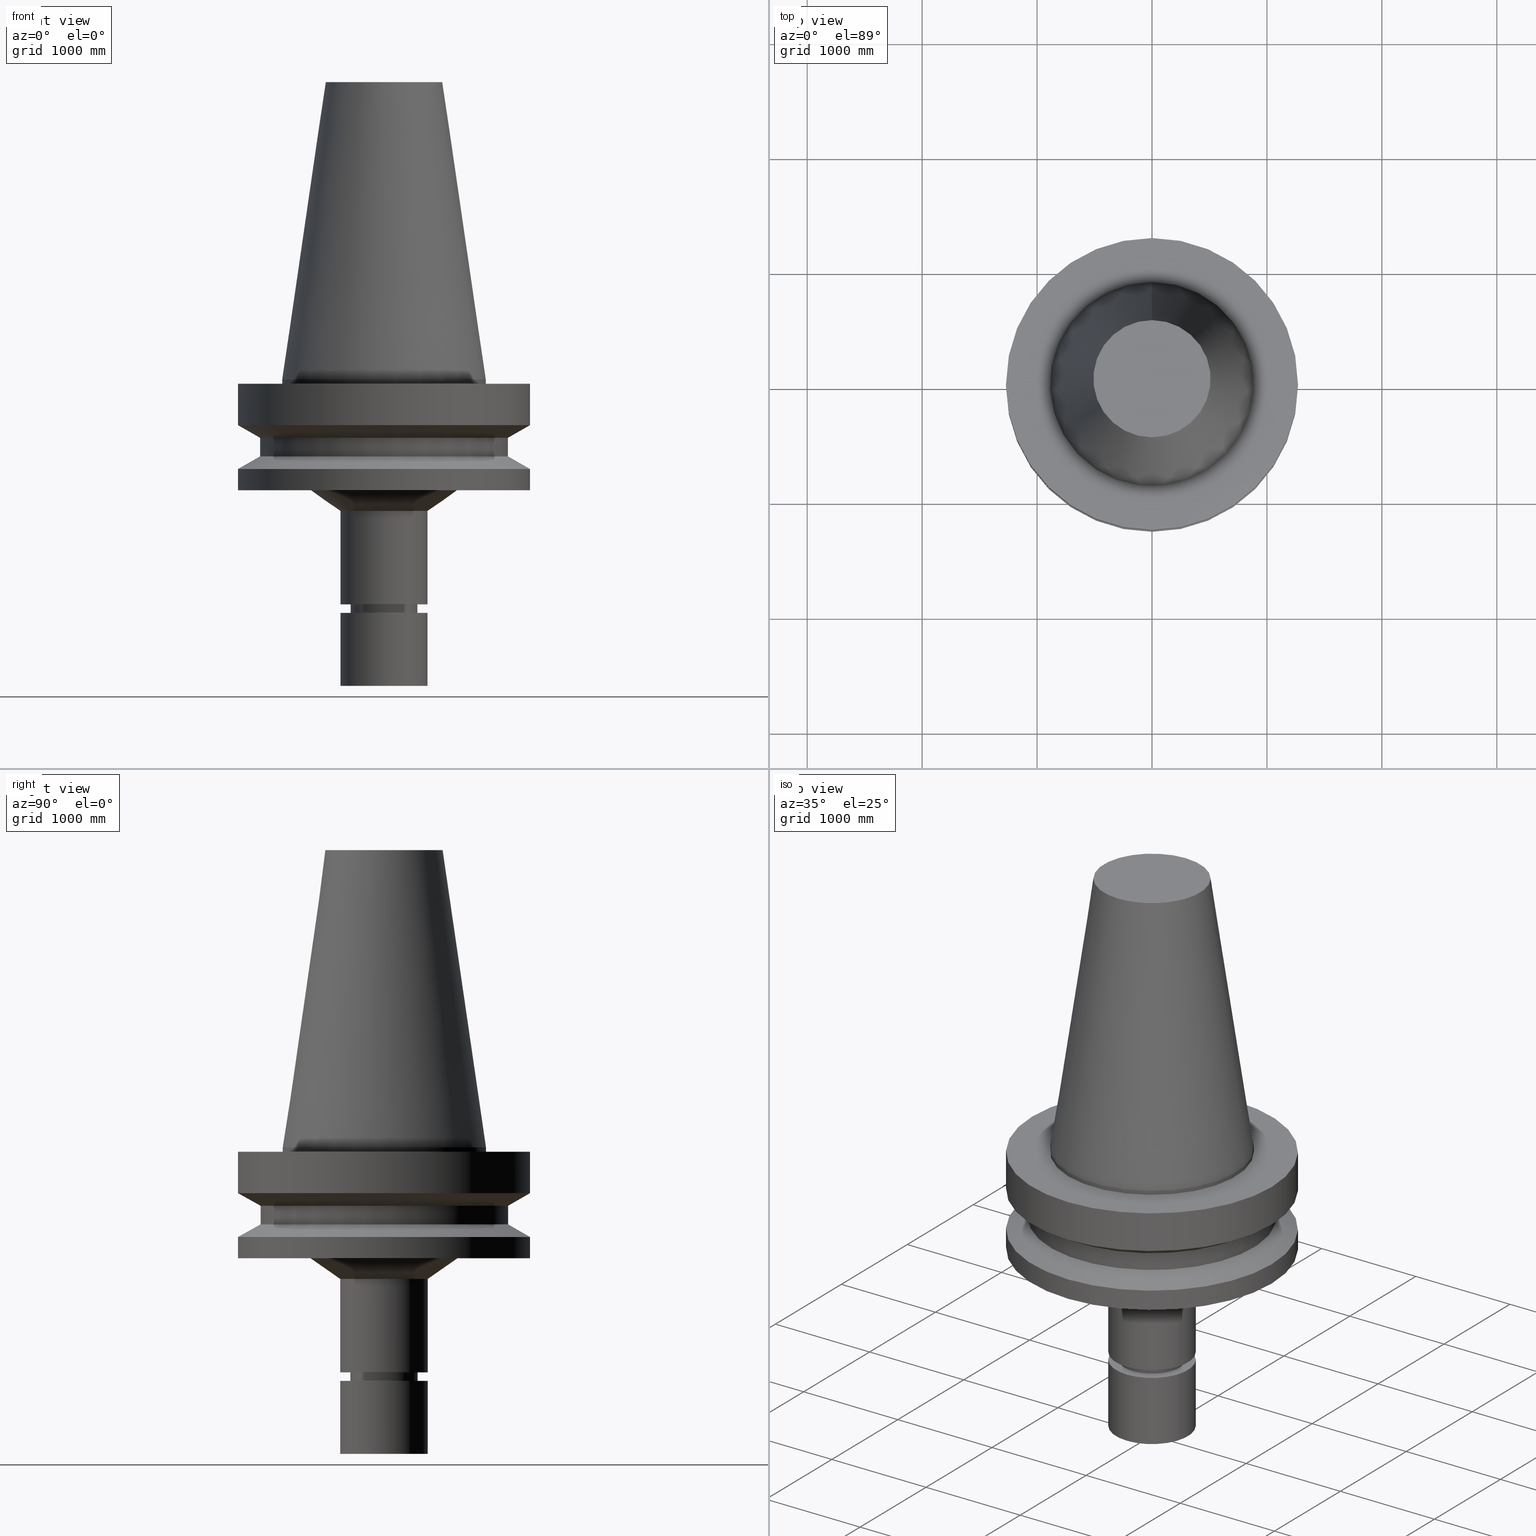
[diagram: canonical four-view strip — front | top / right | iso, engineering-drawing reading convention]
A machine part, canonical four-view strip (front | top / right | iso — engineering-drawing reading convention). The complete STEP part file that produces these views, byte-faithful:
ISO-10303-21;
HEADER;
FILE_DESCRIPTION((''),'1');
FILE_NAME('V:/90_\X2\53D65F9730C730FC30BF\X0\/00_\X2\6DE18DEF30C730FC30BF\X0\/ALL/BBT-BKUS\X2\FF76FF80FF9BFF78FF9E752852A05DE556F3\X0\201801/BBT50-MEGAER/BBT50-MEGAER16-105NL.stp','2018-02-02T07:38:12',(''),(''),'Spatial Interop R21 SP3','Kubotek KeyCreator 2011 V10.0.2 (22737)',' ');
FILE_SCHEMA(('automotive_design'));
ENDSEC;
DATA;
#1=MECHANICAL_DESIGN_GEOMETRIC_PRESENTATION_REPRESENTATION(' ',(#14,#15,#16,#17,#18,#19,#20,#21,#22,#23,#24,#25,#26,#27,#28,#29,#30,#31,#32,#33,#34,#35,#36,#37,#38,#39,#40,#41,#42,#43,#44,#45,#46,#47,#48,#49,#50,#51,#52,#53,#54,#55),#10);
#2=PRODUCT_DEFINITION_CONTEXT('',#56,'design');
#3=APPLICATION_PROTOCOL_DEFINITION('INTERNATIONAL STANDARD','automotive_design',1994,#56);
#4=PRODUCT_CATEGORY_RELATIONSHIP('NONE','NONE',#57,#58);
#5=SHAPE_DEFINITION_REPRESENTATION(#59,#60);
#6=PRODUCT_DEFINITION_CONTEXT('',#61,'design');
#7=APPLICATION_PROTOCOL_DEFINITION('INTERNATIONAL STANDARD','automotive_design',1994,#61);
#8=PRODUCT_CATEGORY_RELATIONSHIP('NONE','NONE',#62,#63);
#9=SHAPE_DEFINITION_REPRESENTATION(#64,#65);
#10= (GEOMETRIC_REPRESENTATION_CONTEXT(3)GLOBAL_UNCERTAINTY_ASSIGNED_CONTEXT((#68))GLOBAL_UNIT_ASSIGNED_CONTEXT((#70,#71,#72))REPRESENTATION_CONTEXT('NONE','WORKSPACE'));
#14=STYLED_ITEM('',(#74,#75),#76);
#15=STYLED_ITEM('',(#77,#78),#79);
#16=STYLED_ITEM('',(#80,#81),#82);
#17=STYLED_ITEM('',(#83,#84),#85);
#18=STYLED_ITEM('',(#86,#87),#88);
#19=STYLED_ITEM('',(#89),#90);
#20=STYLED_ITEM('',(#91),#92);
#21=STYLED_ITEM('',(#93,#94),#95);
#22=STYLED_ITEM('',(#96),#97);
#23=STYLED_ITEM('',(#98),#99);
#24=STYLED_ITEM('',(#100,#101),#102);
#25=STYLED_ITEM('',(#103,#104),#105);
#26=STYLED_ITEM('',(#106),#107);
#27=STYLED_ITEM('',(#108),#109);
#28=STYLED_ITEM('',(#110),#111);
#29=STYLED_ITEM('',(#112,#113),#114);
#30=STYLED_ITEM('',(#115),#116);
#31=STYLED_ITEM('',(#117,#118),#119);
#32=STYLED_ITEM('',(#120,#121),#122);
#33=STYLED_ITEM('',(#123,#124),#125);
#34=STYLED_ITEM('',(#126,#127),#128);
#35=STYLED_ITEM('',(#129,#130),#131);
#36=STYLED_ITEM('',(#132,#133),#134);
#37=STYLED_ITEM('',(#135),#136);
#38=STYLED_ITEM('',(#137,#138),#139);
#39=STYLED_ITEM('',(#140),#141);
#40=STYLED_ITEM('',(#142,#143),#144);
#41=STYLED_ITEM('',(#145),#146);
#42=STYLED_ITEM('',(#147),#148);
#43=STYLED_ITEM('',(#149,#150),#151);
#44=STYLED_ITEM('',(#152),#153);
#45=STYLED_ITEM('',(#154,#155),#156);
#46=STYLED_ITEM('',(#157),#158);
#47=STYLED_ITEM('',(#159),#160);
#48=STYLED_ITEM('',(#161,#162),#163);
#49=STYLED_ITEM('',(#164),#165);
#50=STYLED_ITEM('',(#166),#167);
#51=STYLED_ITEM('',(#168),#169);
#52=STYLED_ITEM('',(#170,#171),#172);
#53=STYLED_ITEM('',(#173,#174),#175);
#54=STYLED_ITEM('',(#176,#177),#178);
#55=STYLED_ITEM('',(#179),#180);
#56=APPLICATION_CONTEXT(' ');
#57=PRODUCT_CATEGORY('part','NONE');
#58=PRODUCT_RELATED_PRODUCT_CATEGORY('detail',' ',(#181));
#59=PRODUCT_DEFINITION_SHAPE('NONE','NONE',#182);
#60=ADVANCED_BREP_SHAPE_REPRESENTATION('Unnamed[1]',(#175,#183),#10);
#61=APPLICATION_CONTEXT(' ');
#62=PRODUCT_CATEGORY('part','NONE');
#63=PRODUCT_RELATED_PRODUCT_CATEGORY('detail',' ',(#184));
#64=PRODUCT_DEFINITION_SHAPE('NONE','NONE',#185);
#65=ADVANCED_BREP_SHAPE_REPRESENTATION('Unnamed[1]',(#102,#186),#10);
#68=UNCERTAINTY_MEASURE_WITH_UNIT(LENGTH_MEASURE(1.0E-006),#70,'','');
#70= (CONVERSION_BASED_UNIT('INCH',#189)LENGTH_UNIT()NAMED_UNIT(#192));
#71= (NAMED_UNIT(#194)PLANE_ANGLE_UNIT()SI_UNIT($,.RADIAN.));
#72= (NAMED_UNIT(#194)SOLID_ANGLE_UNIT()SI_UNIT($,.STERADIAN.));
#74=PRESENTATION_STYLE_ASSIGNMENT((#200));
#75=PRESENTATION_STYLE_ASSIGNMENT((#201));
#76=ADVANCED_FACE('Unnamed[1]',(#202),#203,.T.);
#77=PRESENTATION_STYLE_ASSIGNMENT((#204));
#78=PRESENTATION_STYLE_ASSIGNMENT((#205));
#79=ADVANCED_FACE('Unnamed[1]',(#206,#207),#208,.T.);
#80=PRESENTATION_STYLE_ASSIGNMENT((#209));
#81=PRESENTATION_STYLE_ASSIGNMENT((#210));
#82=ADVANCED_FACE('Unnamed[1]',(#211,#212),#213,.T.);
#83=PRESENTATION_STYLE_ASSIGNMENT((#214));
#84=PRESENTATION_STYLE_ASSIGNMENT((#215));
#85=ADVANCED_FACE('Unnamed[1]',(#216,#217),#218,.T.);
#86=PRESENTATION_STYLE_ASSIGNMENT((#219));
#87=PRESENTATION_STYLE_ASSIGNMENT((#220));
#88=ADVANCED_FACE('Unnamed[1]',(#221,#222),#223,.T.);
#89=PRESENTATION_STYLE_ASSIGNMENT((#224));
#90=EDGE_CURVE('Unnamed[1]',#225,#225,#226,.T.);
#91=PRESENTATION_STYLE_ASSIGNMENT((#227));
#92=EDGE_CURVE('Unnamed[1]',#228,#228,#229,.T.);
#93=PRESENTATION_STYLE_ASSIGNMENT((#230));
#94=PRESENTATION_STYLE_ASSIGNMENT((#231));
#95=ADVANCED_FACE('Unnamed[1]',(#232,#233),#234,.T.);
#96=PRESENTATION_STYLE_ASSIGNMENT((#235));
#97=EDGE_CURVE('Unnamed[1]',#236,#236,#237,.T.);
#98=PRESENTATION_STYLE_ASSIGNMENT((#238));
#99=EDGE_CURVE('Unnamed[1]',#239,#239,#240,.T.);
#100=PRESENTATION_STYLE_ASSIGNMENT((#241));
#101=PRESENTATION_STYLE_ASSIGNMENT((#242));
#102=MANIFOLD_SOLID_BREP('Unnamed[1]',#243);
#103=PRESENTATION_STYLE_ASSIGNMENT((#244));
#104=PRESENTATION_STYLE_ASSIGNMENT((#245));
#105=ADVANCED_FACE('Unnamed[1]',(#246,#247),#248,.T.);
#106=PRESENTATION_STYLE_ASSIGNMENT((#249));
#107=EDGE_CURVE('Unnamed[1]',#250,#250,#251,.T.);
#108=PRESENTATION_STYLE_ASSIGNMENT((#252));
#109=EDGE_CURVE('Unnamed[1]',#253,#253,#254,.T.);
#110=PRESENTATION_STYLE_ASSIGNMENT((#255));
#111=EDGE_CURVE('Unnamed[1]',#256,#256,#257,.T.);
#112=PRESENTATION_STYLE_ASSIGNMENT((#258));
#113=PRESENTATION_STYLE_ASSIGNMENT((#259));
#114=ADVANCED_FACE('Unnamed[1]',(#260,#261),#262,.T.);
#115=PRESENTATION_STYLE_ASSIGNMENT((#263));
#116=EDGE_CURVE('Unnamed[1]',#264,#264,#265,.T.);
#117=PRESENTATION_STYLE_ASSIGNMENT((#266));
#118=PRESENTATION_STYLE_ASSIGNMENT((#267));
#119=ADVANCED_FACE('Unnamed[1]',(#268,#269),#270,.T.);
#120=PRESENTATION_STYLE_ASSIGNMENT((#271));
#121=PRESENTATION_STYLE_ASSIGNMENT((#272));
#122=ADVANCED_FACE('Unnamed[1]',(#273),#274,.T.);
#123=PRESENTATION_STYLE_ASSIGNMENT((#275));
#124=PRESENTATION_STYLE_ASSIGNMENT((#276));
#125=ADVANCED_FACE('Unnamed[1]',(#277,#278),#279,.T.);
#126=PRESENTATION_STYLE_ASSIGNMENT((#280));
#127=PRESENTATION_STYLE_ASSIGNMENT((#281));
#128=ADVANCED_FACE('Unnamed[1]',(#282,#283),#284,.T.);
#129=PRESENTATION_STYLE_ASSIGNMENT((#285));
#130=PRESENTATION_STYLE_ASSIGNMENT((#286));
#131=ADVANCED_FACE('Unnamed[1]',(#287,#288),#289,.T.);
#132=PRESENTATION_STYLE_ASSIGNMENT((#290));
#133=PRESENTATION_STYLE_ASSIGNMENT((#291));
#134=ADVANCED_FACE('Unnamed[1]',(#292,#293),#294,.T.);
#135=PRESENTATION_STYLE_ASSIGNMENT((#295));
#136=EDGE_CURVE('Unnamed[1]',#296,#296,#297,.T.);
#137=PRESENTATION_STYLE_ASSIGNMENT((#298));
#138=PRESENTATION_STYLE_ASSIGNMENT((#299));
#139=ADVANCED_FACE('Unnamed[1]',(#300,#301),#302,.T.);
#140=PRESENTATION_STYLE_ASSIGNMENT((#303));
#141=EDGE_CURVE('Unnamed[1]',#304,#304,#305,.T.);
#142=PRESENTATION_STYLE_ASSIGNMENT((#306));
#143=PRESENTATION_STYLE_ASSIGNMENT((#307));
#144=ADVANCED_FACE('Unnamed[1]',(#308),#309,.T.);
#145=PRESENTATION_STYLE_ASSIGNMENT((#310));
#146=EDGE_CURVE('Unnamed[1]',#311,#311,#312,.T.);
#147=PRESENTATION_STYLE_ASSIGNMENT((#313));
#148=EDGE_CURVE('Unnamed[1]',#314,#314,#315,.T.);
#149=PRESENTATION_STYLE_ASSIGNMENT((#316));
#150=PRESENTATION_STYLE_ASSIGNMENT((#317));
#151=ADVANCED_FACE('Unnamed[1]',(#318,#319),#320,.T.);
#152=PRESENTATION_STYLE_ASSIGNMENT((#321));
#153=EDGE_CURVE('Unnamed[1]',#322,#322,#323,.T.);
#154=PRESENTATION_STYLE_ASSIGNMENT((#324));
#155=PRESENTATION_STYLE_ASSIGNMENT((#325));
#156=ADVANCED_FACE('Unnamed[1]',(#326,#327),#328,.T.);
#157=PRESENTATION_STYLE_ASSIGNMENT((#329));
#158=EDGE_CURVE('Unnamed[1]',#330,#330,#331,.T.);
#159=PRESENTATION_STYLE_ASSIGNMENT((#332));
#160=EDGE_CURVE('Unnamed[1]',#333,#333,#334,.T.);
#161=PRESENTATION_STYLE_ASSIGNMENT((#335));
#162=PRESENTATION_STYLE_ASSIGNMENT((#336));
#163=ADVANCED_FACE('Unnamed[1]',(#337,#338),#339,.T.);
#164=PRESENTATION_STYLE_ASSIGNMENT((#340));
#165=EDGE_CURVE('Unnamed[1]',#341,#341,#342,.T.);
#166=PRESENTATION_STYLE_ASSIGNMENT((#343));
#167=EDGE_CURVE('Unnamed[1]',#344,#344,#345,.T.);
#168=PRESENTATION_STYLE_ASSIGNMENT((#346));
#169=EDGE_CURVE('Unnamed[1]',#347,#347,#348,.T.);
#170=PRESENTATION_STYLE_ASSIGNMENT((#349));
#171=PRESENTATION_STYLE_ASSIGNMENT((#350));
#172=ADVANCED_FACE('Unnamed[1]',(#351),#352,.T.);
#173=PRESENTATION_STYLE_ASSIGNMENT((#353));
#174=PRESENTATION_STYLE_ASSIGNMENT((#354));
#175=MANIFOLD_SOLID_BREP('Unnamed[1]',#355);
#176=PRESENTATION_STYLE_ASSIGNMENT((#356));
#177=PRESENTATION_STYLE_ASSIGNMENT((#357));
#178=ADVANCED_FACE('Unnamed[1]',(#358,#359),#360,.T.);
#179=PRESENTATION_STYLE_ASSIGNMENT((#361));
#180=EDGE_CURVE('Unnamed[1]',#362,#362,#363,.T.);
#181=PRODUCT('Unnamed[1]','Unnamed[1]','PART-Unnamed[1]-DESC',(#364));
#182=PRODUCT_DEFINITION('NONE','NONE',#365,#2);
#183=AXIS2_PLACEMENT_3D('',#366,#367,#368);
#184=PRODUCT('Unnamed[1]','Unnamed[1]','PART-Unnamed[1]-DESC',(#369));
#185=PRODUCT_DEFINITION('NONE','NONE',#370,#6);
#186=AXIS2_PLACEMENT_3D('',#371,#372,#373);
#189=LENGTH_MEASURE_WITH_UNIT(LENGTH_MEASURE(25.4),#374);
#192=DIMENSIONAL_EXPONENTS(1.0,0.0,0.0,0.0,0.0,0.0,0.0);
#194=DIMENSIONAL_EXPONENTS(0.0,0.0,0.0,0.0,0.0,0.0,0.0);
#200=SURFACE_STYLE_USAGE(.BOTH.,#375);
#201=CURVE_STYLE('',#376,POSITIVE_LENGTH_MEASURE(1000.0),#377);
#202=FACE_OUTER_BOUND('',#378,.T.);
#203=PLANE('',#379);
#204=SURFACE_STYLE_USAGE(.BOTH.,#380);
#205=CURVE_STYLE('',#381,POSITIVE_LENGTH_MEASURE(1000.0),#382);
#206=FACE_OUTER_BOUND('',#383,.T.);
#207=FACE_BOUND('',#384,.T.);
#208=PLANE('',#385);
#209=SURFACE_STYLE_USAGE(.BOTH.,#386);
#210=CURVE_STYLE('',#387,POSITIVE_LENGTH_MEASURE(1000.0),#388);
#211=FACE_BOUND('',#389,.T.);
#212=FACE_BOUND('',#390,.T.);
#213=CONICAL_SURFACE('',#391,46.25,1.04719755108882);
#214=SURFACE_STYLE_USAGE(.BOTH.,#392);
#215=CURVE_STYLE('',#393,POSITIVE_LENGTH_MEASURE(1000.0),#394);
#216=FACE_BOUND('',#395,.T.);
#217=FACE_BOUND('',#396,.T.);
#218=CONICAL_SURFACE('',#397,27.5020833325942,0.144812498253157);
#219=SURFACE_STYLE_USAGE(.BOTH.,#398);
#220=CURVE_STYLE('',#399,POSITIVE_LENGTH_MEASURE(1000.0),#400);
#221=FACE_BOUND('',#401,.T.);
#222=FACE_BOUND('',#402,.T.);
#223=CYLINDRICAL_SURFACE('',#403,11.0000000000001);
#224=CURVE_STYLE('',#404,POSITIVE_LENGTH_MEASURE(1000.0),#405);
#225=VERTEX_POINT('',#406);
#226=CIRCLE('',#407,42.5);
#227=CURVE_STYLE('',#408,POSITIVE_LENGTH_MEASURE(1000.0),#409);
#228=VERTEX_POINT('',#410);
#229=CIRCLE('',#411,42.5);
#230=SURFACE_STYLE_USAGE(.BOTH.,#412);
#231=CURVE_STYLE('',#413,POSITIVE_LENGTH_MEASURE(1000.0),#414);
#232=FACE_BOUND('',#415,.T.);
#233=FACE_BOUND('',#416,.T.);
#234=CONICAL_SURFACE('',#417,20.0717863357248,0.962446965226311);
#235=CURVE_STYLE('',#418,POSITIVE_LENGTH_MEASURE(1000.0),#419);
#236=VERTEX_POINT('',#420);
#237=CIRCLE('',#421,25.1435726714495);
#238=CURVE_STYLE('',#422,POSITIVE_LENGTH_MEASURE(1000.0),#423);
#239=VERTEX_POINT('',#424);
#240=CIRCLE('',#425,20.0791666651884);
#241=SURFACE_STYLE_USAGE(.BOTH.,#426);
#242=CURVE_STYLE('',#427,POSITIVE_LENGTH_MEASURE(1000.0),#428);
#243=CLOSED_SHELL('',(#172,#144,#119));
#244=SURFACE_STYLE_USAGE(.BOTH.,#429);
#245=CURVE_STYLE('',#430,POSITIVE_LENGTH_MEASURE(1000.0),#431);
#246=FACE_BOUND('',#432,.T.);
#247=FACE_BOUND('',#433,.T.);
#248=CYLINDRICAL_SURFACE('',#434,34.925);
#249=CURVE_STYLE('',#435,POSITIVE_LENGTH_MEASURE(1000.0),#436);
#250=VERTEX_POINT('',#437);
#251=CIRCLE('',#438,50.0);
#252=CURVE_STYLE('',#439,POSITIVE_LENGTH_MEASURE(1000.0),#440);
#253=VERTEX_POINT('',#441);
#254=CIRCLE('',#442,11.5000000000021);
#255=CURVE_STYLE('',#443,POSITIVE_LENGTH_MEASURE(1000.0),#444);
#256=VERTEX_POINT('',#445);
#257=CIRCLE('',#446,34.925);
#258=SURFACE_STYLE_USAGE(.BOTH.,#447);
#259=CURVE_STYLE('',#448,POSITIVE_LENGTH_MEASURE(1000.0),#449);
#260=FACE_BOUND('',#450,.T.);
#261=FACE_BOUND('',#451,.T.);
#262=CONICAL_SURFACE('',#452,46.25,1.04719755108882);
#263=CURVE_STYLE('',#453,POSITIVE_LENGTH_MEASURE(1000.0),#454);
#264=VERTEX_POINT('',#455);
#265=CIRCLE('',#456,10.9999999999999);
#266=SURFACE_STYLE_USAGE(.BOTH.,#457);
#267=CURVE_STYLE('',#458,POSITIVE_LENGTH_MEASURE(1000.0),#459);
#268=FACE_BOUND('',#460,.T.);
#269=FACE_BOUND('',#461,.T.);
#270=CYLINDRICAL_SURFACE('',#462,15.0);
#271=SURFACE_STYLE_USAGE(.BOTH.,#463);
#272=CURVE_STYLE('',#464,POSITIVE_LENGTH_MEASURE(1000.0),#465);
#273=FACE_OUTER_BOUND('',#466,.T.);
#274=PLANE('',#467);
#275=SURFACE_STYLE_USAGE(.BOTH.,#468);
#276=CURVE_STYLE('',#469,POSITIVE_LENGTH_MEASURE(1000.0),#470);
#277=FACE_BOUND('',#471,.T.);
#278=FACE_OUTER_BOUND('',#472,.T.);
#279=PLANE('',#473);
#280=SURFACE_STYLE_USAGE(.BOTH.,#474);
#281=CURVE_STYLE('',#475,POSITIVE_LENGTH_MEASURE(1000.0),#476);
#282=FACE_BOUND('',#477,.T.);
#283=FACE_BOUND('',#478,.T.);
#284=CONICAL_SURFACE('',#479,10.4499999999999,0.523598775598227);
#285=SURFACE_STYLE_USAGE(.BOTH.,#480);
#286=CURVE_STYLE('',#481,POSITIVE_LENGTH_MEASURE(1000.0),#482);
#287=FACE_OUTER_BOUND('',#483,.T.);
#288=FACE_BOUND('',#484,.T.);
#289=PLANE('',#485);
#290=SURFACE_STYLE_USAGE(.BOTH.,#486);
#291=CURVE_STYLE('',#487,POSITIVE_LENGTH_MEASURE(1000.0),#488);
#292=FACE_BOUND('',#489,.T.);
#293=FACE_BOUND('',#490,.T.);
#294=CYLINDRICAL_SURFACE('',#491,15.0000000000002);
#295=CURVE_STYLE('',#492,POSITIVE_LENGTH_MEASURE(1000.0),#493);
#296=VERTEX_POINT('',#494);
#297=CIRCLE('',#495,15.0);
#298=SURFACE_STYLE_USAGE(.BOTH.,#496);
#299=CURVE_STYLE('',#497,POSITIVE_LENGTH_MEASURE(1000.0),#498);
#300=FACE_BOUND('',#499,.T.);
#301=FACE_BOUND('',#500,.T.);
#302=CYLINDRICAL_SURFACE('',#501,42.5);
#303=CURVE_STYLE('',#502,POSITIVE_LENGTH_MEASURE(1000.0),#503);
#304=VERTEX_POINT('',#504);
#305=CIRCLE('',#505,9.89999999999962);
#306=SURFACE_STYLE_USAGE(.BOTH.,#506);
#307=CURVE_STYLE('',#507,POSITIVE_LENGTH_MEASURE(1000.0),#508);
#308=FACE_OUTER_BOUND('',#509,.T.);
#309=PLANE('',#510);
#310=CURVE_STYLE('',#511,POSITIVE_LENGTH_MEASURE(1000.0),#512);
#311=VERTEX_POINT('',#513);
#312=CIRCLE('',#514,50.0);
#313=CURVE_STYLE('',#515,POSITIVE_LENGTH_MEASURE(1000.0),#516);
#314=VERTEX_POINT('',#517);
#315=CIRCLE('',#518,15.0000000000001);
#316=SURFACE_STYLE_USAGE(.BOTH.,#519);
#317=CURVE_STYLE('',#520,POSITIVE_LENGTH_MEASURE(1000.0),#521);
#318=FACE_BOUND('',#522,.T.);
#319=FACE_BOUND('',#523,.T.);
#320=CYLINDRICAL_SURFACE('',#524,50.0);
#321=CURVE_STYLE('',#525,POSITIVE_LENGTH_MEASURE(1000.0),#526);
#322=VERTEX_POINT('',#527);
#323=CIRCLE('',#528,34.925);
#324=SURFACE_STYLE_USAGE(.BOTH.,#529);
#325=CURVE_STYLE('',#530,POSITIVE_LENGTH_MEASURE(1000.0),#531);
#326=FACE_BOUND('',#532,.T.);
#327=FACE_BOUND('',#533,.T.);
#328=CYLINDRICAL_SURFACE('',#534,11.4999999999964);
#329=CURVE_STYLE('',#535,POSITIVE_LENGTH_MEASURE(1000.0),#536);
#330=VERTEX_POINT('',#537);
#331=CIRCLE('',#538,11.0000000000002);
#332=CURVE_STYLE('',#539,POSITIVE_LENGTH_MEASURE(1000.0),#540);
#333=VERTEX_POINT('',#541);
#334=CIRCLE('',#542,11.4999999999907);
#335=SURFACE_STYLE_USAGE(.BOTH.,#543);
#336=CURVE_STYLE('',#544,POSITIVE_LENGTH_MEASURE(1000.0),#545);
#337=FACE_BOUND('',#546,.T.);
#338=FACE_BOUND('',#547,.T.);
#339=CYLINDRICAL_SURFACE('',#548,50.0);
#340=CURVE_STYLE('',#549,POSITIVE_LENGTH_MEASURE(1000.0),#550);
#341=VERTEX_POINT('',#551);
#342=CIRCLE('',#552,50.0);
#343=CURVE_STYLE('',#553,POSITIVE_LENGTH_MEASURE(1000.0),#554);
#344=VERTEX_POINT('',#555);
#345=CIRCLE('',#556,50.0);
#346=CURVE_STYLE('',#557,POSITIVE_LENGTH_MEASURE(1000.0),#558);
#347=VERTEX_POINT('',#559);
#348=CIRCLE('',#560,15.0000000000002);
#349=SURFACE_STYLE_USAGE(.BOTH.,#561);
#350=CURVE_STYLE('',#562,POSITIVE_LENGTH_MEASURE(1000.0),#563);
#351=FACE_OUTER_BOUND('',#564,.T.);
#352=PLANE('',#565);
#353=SURFACE_STYLE_USAGE(.BOTH.,#566);
#354=CURVE_STYLE('',#567,POSITIVE_LENGTH_MEASURE(1000.0),#568);
#355=CLOSED_SHELL('',(#76,#128,#88,#178,#156,#131,#134,#95,#79,#163,#82,#139,#114,#151,#125,#105,#85,#122));
#356=SURFACE_STYLE_USAGE(.BOTH.,#569);
#357=CURVE_STYLE('',#570,POSITIVE_LENGTH_MEASURE(1000.0),#571);
#358=FACE_BOUND('',#572,.T.);
#359=FACE_BOUND('',#573,.T.);
#360=CONICAL_SURFACE('',#574,11.250000000001,1.04719755118904);
#361=CURVE_STYLE('',#575,POSITIVE_LENGTH_MEASURE(1000.0),#576);
#362=VERTEX_POINT('',#577);
#363=CIRCLE('',#578,15.0000000000001);
#364=PRODUCT_CONTEXT('',#56,'mechanical');
#365=PRODUCT_DEFINITION_FORMATION_WITH_SPECIFIED_SOURCE(' ','NONE',#181,.NOT_KNOWN.);
#366=CARTESIAN_POINT('',(0.0,0.0,0.0));
#367=DIRECTION('',(0.0,0.0,1.0));
#368=DIRECTION('',(1.0,0.0,0.0));
#369=PRODUCT_CONTEXT('',#61,'mechanical');
#370=PRODUCT_DEFINITION_FORMATION_WITH_SPECIFIED_SOURCE(' ','NONE',#184,.NOT_KNOWN.);
#371=CARTESIAN_POINT('',(0.0,0.0,0.0));
#372=DIRECTION('',(0.0,0.0,1.0));
#373=DIRECTION('',(1.0,0.0,0.0));
#374= (NAMED_UNIT(#192)LENGTH_UNIT()SI_UNIT(.MILLI.,.METRE.));
#375=SURFACE_SIDE_STYLE('',(#580));
#376=DRAUGHTING_PRE_DEFINED_CURVE_FONT('continuous');
#377=COLOUR_RGB('',0.0,1.0,0.0);
#378=EDGE_LOOP('',(#581));
#379=AXIS2_PLACEMENT_3D('',#582,#583,#584);
#380=SURFACE_SIDE_STYLE('',(#585));
#381=DRAUGHTING_PRE_DEFINED_CURVE_FONT('continuous');
#382=COLOUR_RGB('',0.0,1.0,0.0);
#383=EDGE_LOOP('',(#586));
#384=EDGE_LOOP('',(#587));
#385=AXIS2_PLACEMENT_3D('',#588,#589,#590);
#386=SURFACE_SIDE_STYLE('',(#591));
#387=DRAUGHTING_PRE_DEFINED_CURVE_FONT('continuous');
#388=COLOUR_RGB('',0.0,1.0,0.0);
#389=EDGE_LOOP('',(#592));
#390=EDGE_LOOP('',(#593));
#391=AXIS2_PLACEMENT_3D('',#594,#595,#596);
#392=SURFACE_SIDE_STYLE('',(#597));
#393=DRAUGHTING_PRE_DEFINED_CURVE_FONT('continuous');
#394=COLOUR_RGB('',0.0,1.0,0.0);
#395=EDGE_LOOP('',(#598));
#396=EDGE_LOOP('',(#599));
#397=AXIS2_PLACEMENT_3D('',#600,#601,#602);
#398=SURFACE_SIDE_STYLE('',(#603));
#399=DRAUGHTING_PRE_DEFINED_CURVE_FONT('continuous');
#400=COLOUR_RGB('',0.0,1.0,0.0);
#401=EDGE_LOOP('',(#604));
#402=EDGE_LOOP('',(#605));
#403=AXIS2_PLACEMENT_3D('',#606,#607,#608);
#404=DRAUGHTING_PRE_DEFINED_CURVE_FONT('continuous');
#405=COLOUR_RGB('',0.0,1.0,0.0);
#406=CARTESIAN_POINT('',(1.61468902694397E-015,42.5,-26.3698729800001));
#407=AXIS2_PLACEMENT_3D('',#609,#610,#611);
#408=DRAUGHTING_PRE_DEFINED_CURVE_FONT('continuous');
#409=COLOUR_RGB('',0.0,1.0,0.0);
#410=CARTESIAN_POINT('',(1.2264915470779E-015,42.5,-20.03012702));
#411=AXIS2_PLACEMENT_3D('',#612,#613,#614);
#412=SURFACE_SIDE_STYLE('',(#615));
#413=DRAUGHTING_PRE_DEFINED_CURVE_FONT('continuous');
#414=COLOUR_RGB('',0.0,1.0,0.0);
#415=EDGE_LOOP('',(#616));
#416=EDGE_LOOP('',(#617));
#417=AXIS2_PLACEMENT_3D('',#618,#619,#620);
#418=DRAUGHTING_PRE_DEFINED_CURVE_FONT('continuous');
#419=COLOUR_RGB('',0.0,1.0,0.0);
#420=CARTESIAN_POINT('',(2.32682891837996E-015,25.1435726714495,-37.9999999999999));
#421=AXIS2_PLACEMENT_3D('',#621,#622,#623);
#422=DRAUGHTING_PRE_DEFINED_CURVE_FONT('continuous');
#423=COLOUR_RGB('',0.0,1.0,0.0);
#424=CARTESIAN_POINT('',(-6.23345220766003E-015,20.0791666651884,101.8));
#425=AXIS2_PLACEMENT_3D('',#624,#625,#626);
#426=SURFACE_SIDE_STYLE('',(#627));
#427=DRAUGHTING_PRE_DEFINED_CURVE_FONT('continuous');
#428=COLOUR_RGB('',0.0,1.0,0.0);
#429=SURFACE_SIDE_STYLE('',(#628));
#430=DRAUGHTING_PRE_DEFINED_CURVE_FONT('continuous');
#431=COLOUR_RGB('',0.0,1.0,0.0);
#432=EDGE_LOOP('',(#629));
#433=EDGE_LOOP('',(#630));
#434=AXIS2_PLACEMENT_3D('',#631,#632,#633);
#435=DRAUGHTING_PRE_DEFINED_CURVE_FONT('continuous');
#436=COLOUR_RGB('',0.0,1.0,0.0);
#437=CARTESIAN_POINT('',(9.61347737330674E-016,50.0,-15.7));
#438=AXIS2_PLACEMENT_3D('',#634,#635,#636);
#439=DRAUGHTING_PRE_DEFINED_CURVE_FONT('continuous');
#440=COLOUR_RGB('',0.0,1.0,0.0);
#441=CARTESIAN_POINT('',(5.07685443047376E-015,11.5000000000021,-82.9113248653973));
#442=AXIS2_PLACEMENT_3D('',#637,#638,#639);
#443=DRAUGHTING_PRE_DEFINED_CURVE_FONT('continuous');
#444=COLOUR_RGB('',0.0,1.0,0.0);
#445=CARTESIAN_POINT('',(9.18485099360511E-017,34.925,-1.5));
#446=AXIS2_PLACEMENT_3D('',#640,#641,#642);
#447=SURFACE_SIDE_STYLE('',(#643));
#448=DRAUGHTING_PRE_DEFINED_CURVE_FONT('continuous');
#449=COLOUR_RGB('',0.0,1.0,0.0);
#450=EDGE_LOOP('',(#644));
#451=EDGE_LOOP('',(#645));
#452=AXIS2_PLACEMENT_3D('',#646,#647,#648);
#453=DRAUGHTING_PRE_DEFINED_CURVE_FONT('continuous');
#454=COLOUR_RGB('',0.0,1.0,0.0);
#455=CARTESIAN_POINT('',(5.09453068445289E-015,10.9999999999999,-83.1999999999985));
#456=AXIS2_PLACEMENT_3D('',#649,#650,#651);
#457=SURFACE_SIDE_STYLE('',(#652));
#458=DRAUGHTING_PRE_DEFINED_CURVE_FONT('continuous');
#459=COLOUR_RGB('',0.0,1.0,0.0);
#460=EDGE_LOOP('',(#653));
#461=EDGE_LOOP('',(#654));
#462=AXIS2_PLACEMENT_3D('',#655,#656,#657);
#463=SURFACE_SIDE_STYLE('',(#658));
#464=DRAUGHTING_PRE_DEFINED_CURVE_FONT('continuous');
#465=COLOUR_RGB('',0.0,1.0,0.0);
#466=EDGE_LOOP('',(#659));
#467=AXIS2_PLACEMENT_3D('',#660,#661,#662);
#468=SURFACE_SIDE_STYLE('',(#663));
#469=DRAUGHTING_PRE_DEFINED_CURVE_FONT('continuous');
#470=COLOUR_RGB('',0.0,1.0,0.0);
#471=EDGE_LOOP('',(#664));
#472=EDGE_LOOP('',(#665));
#473=AXIS2_PLACEMENT_3D('',#666,#667,#668);
#474=SURFACE_SIDE_STYLE('',(#669));
#475=DRAUGHTING_PRE_DEFINED_CURVE_FONT('continuous');
#476=COLOUR_RGB('',0.0,1.0,0.0);
#477=EDGE_LOOP('',(#670));
#478=EDGE_LOOP('',(#671));
#479=AXIS2_PLACEMENT_3D('',#672,#673,#674);
#480=SURFACE_SIDE_STYLE('',(#675));
#481=DRAUGHTING_PRE_DEFINED_CURVE_FONT('continuous');
#482=COLOUR_RGB('',0.0,1.0,0.0);
#483=EDGE_LOOP('',(#676));
#484=EDGE_LOOP('',(#677));
#485=AXIS2_PLACEMENT_3D('',#678,#679,#680);
#486=SURFACE_SIDE_STYLE('',(#681));
#487=DRAUGHTING_PRE_DEFINED_CURVE_FONT('continuous');
#488=COLOUR_RGB('',0.0,1.0,0.0);
#489=EDGE_LOOP('',(#682));
#490=EDGE_LOOP('',(#683));
#491=AXIS2_PLACEMENT_3D('',#684,#685,#686);
#492=DRAUGHTING_PRE_DEFINED_CURVE_FONT('continuous');
#493=COLOUR_RGB('',0.0,1.0,0.0);
#494=CARTESIAN_POINT('',(6.4293956955236E-015,15.0,-105.0));
#495=AXIS2_PLACEMENT_3D('',#687,#688,#689);
#496=SURFACE_SIDE_STYLE('',(#690));
#497=DRAUGHTING_PRE_DEFINED_CURVE_FONT('continuous');
#498=COLOUR_RGB('',0.0,1.0,0.0);
#499=EDGE_LOOP('',(#691));
#500=EDGE_LOOP('',(#692));
#501=AXIS2_PLACEMENT_3D('',#693,#694,#695);
#502=DRAUGHTING_PRE_DEFINED_CURVE_FONT('continuous');
#503=COLOUR_RGB('',0.0,1.0,0.0);
#504=CARTESIAN_POINT('',(5.89055110389872E-015,9.89999999999963,-96.1999999999991));
#505=AXIS2_PLACEMENT_3D('',#696,#697,#698);
#506=SURFACE_SIDE_STYLE('',(#699));
#507=DRAUGHTING_PRE_DEFINED_CURVE_FONT('continuous');
#508=COLOUR_RGB('',0.0,1.0,0.0);
#509=EDGE_LOOP('',(#700));
#510=AXIS2_PLACEMENT_3D('',#701,#702,#703);
#511=DRAUGHTING_PRE_DEFINED_CURVE_FONT('continuous');
#512=COLOUR_RGB('',0.0,1.0,0.0);
#513=CARTESIAN_POINT('',(9.18485099360509E-017,50.0,-1.49999999999999));
#514=AXIS2_PLACEMENT_3D('',#704,#705,#706);
#515=DRAUGHTING_PRE_DEFINED_CURVE_FONT('continuous');
#516=COLOUR_RGB('',0.0,1.0,0.0);
#517=CARTESIAN_POINT('',(2.75941339741635E-015,15.0000000000001,-45.0646406676204));
#518=AXIS2_PLACEMENT_3D('',#707,#708,#709);
#519=SURFACE_SIDE_STYLE('',(#710));
#520=DRAUGHTING_PRE_DEFINED_CURVE_FONT('continuous');
#521=COLOUR_RGB('',0.0,1.0,0.0);
#522=EDGE_LOOP('',(#711));
#523=EDGE_LOOP('',(#712));
#524=AXIS2_PLACEMENT_3D('',#713,#714,#715);
#525=DRAUGHTING_PRE_DEFINED_CURVE_FONT('continuous');
#526=COLOUR_RGB('',0.0,1.0,0.0);
#527=CARTESIAN_POINT('',(-4.30483861169435E-031,34.925,4.27707894602213E-015));
#528=AXIS2_PLACEMENT_3D('',#716,#717,#718);
#529=SURFACE_SIDE_STYLE('',(#719));
#530=DRAUGHTING_PRE_DEFINED_CURVE_FONT('continuous');
#531=COLOUR_RGB('',0.0,1.0,0.0);
#532=EDGE_LOOP('',(#720));
#533=EDGE_LOOP('',(#721));
#534=AXIS2_PLACEMENT_3D('',#722,#723,#724);
#535=DRAUGHTING_PRE_DEFINED_CURVE_FONT('continuous');
#536=COLOUR_RGB('',0.0,1.0,0.0);
#537=CARTESIAN_POINT('',(5.77388782763889E-015,11.0000000000003,-94.2947441116719));
#538=AXIS2_PLACEMENT_3D('',#725,#726,#727);
#539=DRAUGHTING_PRE_DEFINED_CURVE_FONT('continuous');
#540=COLOUR_RGB('',0.0,1.0,0.0);
#541=CARTESIAN_POINT('',(4.72101341071305E-015,11.4999999999907,-77.1000000000001));
#542=AXIS2_PLACEMENT_3D('',#728,#729,#730);
#543=SURFACE_SIDE_STYLE('',(#731));
#544=DRAUGHTING_PRE_DEFINED_CURVE_FONT('continuous');
#545=COLOUR_RGB('',0.0,1.0,0.0);
#546=EDGE_LOOP('',(#732));
#547=EDGE_LOOP('',(#733));
#548=AXIS2_PLACEMENT_3D('',#734,#735,#736);
#549=DRAUGHTING_PRE_DEFINED_CURVE_FONT('continuous');
#550=COLOUR_RGB('',0.0,1.0,0.0);
#551=CARTESIAN_POINT('',(1.87983283669119E-015,50.0,-30.7000000000001));
#552=AXIS2_PLACEMENT_3D('',#737,#738,#739);
#553=DRAUGHTING_PRE_DEFINED_CURVE_FONT('continuous');
#554=COLOUR_RGB('',0.0,1.0,0.0);
#555=CARTESIAN_POINT('',(2.32682891837996E-015,50.0,-37.9999999999998));
#556=AXIS2_PLACEMENT_3D('',#740,#741,#742);
#557=DRAUGHTING_PRE_DEFINED_CURVE_FONT('continuous');
#558=COLOUR_RGB('',0.0,1.0,0.0);
#559=CARTESIAN_POINT('',(4.72101341071301E-015,15.0000000000002,-77.0999999999993));
#560=AXIS2_PLACEMENT_3D('',#743,#744,#745);
#561=SURFACE_SIDE_STYLE('',(#746));
#562=DRAUGHTING_PRE_DEFINED_CURVE_FONT('continuous');
#563=COLOUR_RGB('',0.0,1.0,0.0);
#564=EDGE_LOOP('',(#747));
#565=AXIS2_PLACEMENT_3D('',#748,#749,#750);
#566=SURFACE_SIDE_STYLE('',(#751));
#567=DRAUGHTING_PRE_DEFINED_CURVE_FONT('continuous');
#568=COLOUR_RGB('',0.0,1.0,0.0);
#569=SURFACE_SIDE_STYLE('',(#752));
#570=DRAUGHTING_PRE_DEFINED_CURVE_FONT('continuous');
#571=COLOUR_RGB('',0.0,1.0,0.0);
#572=EDGE_LOOP('',(#753));
#573=EDGE_LOOP('',(#754));
#574=AXIS2_PLACEMENT_3D('',#755,#756,#757);
#575=DRAUGHTING_PRE_DEFINED_CURVE_FONT('continuous');
#576=COLOUR_RGB('',0.0,1.0,0.0);
#577=CARTESIAN_POINT('',(4.89858719658941E-015,15.0000000000001,-80.0));
#578=AXIS2_PLACEMENT_3D('',#758,#759,#760);
#580=SURFACE_STYLE_FILL_AREA(#761);
#581=ORIENTED_EDGE('',*,*,#141,.F.);
#582=CARTESIAN_POINT('',(5.89055110389874E-015,4.94999999999982,-96.1999999999995));
#583=DIRECTION('',(6.12323399573677E-017,8.19425372825961E-014,-1.0));
#584=DIRECTION('',(5.02236045258797E-030,-1.0,-8.19425372825961E-014));
#585=SURFACE_STYLE_FILL_AREA(#762);
#586=ORIENTED_EDGE('',*,*,#167,.F.);
#587=ORIENTED_EDGE('',*,*,#97,.T.);
#588=CARTESIAN_POINT('',(2.32682891837996E-015,37.5717863357248,-37.9999999999998));
#589=DIRECTION('',(6.12323399573677E-017,2.98105222497178E-015,-1.0));
#590=DIRECTION('',(1.87363956000909E-031,-1.0,-2.98105222497178E-015));
#591=SURFACE_STYLE_FILL_AREA(#763);
#592=ORIENTED_EDGE('',*,*,#90,.F.);
#593=ORIENTED_EDGE('',*,*,#165,.T.);
#594=CARTESIAN_POINT('',(1.74726093181758E-015,1.29921541713746E-014,-28.5349364900001));
#595=DIRECTION('',(6.12323399573677E-017,-1.40684069939026E-019,-1.0));
#596=DIRECTION('',(-4.81853831597193E-033,1.0,-1.40684069939026E-019));
#597=SURFACE_STYLE_FILL_AREA(#764);
#598=ORIENTED_EDGE('',*,*,#99,.F.);
#599=ORIENTED_EDGE('',*,*,#153,.T.);
#600=CARTESIAN_POINT('',(-3.11672610383001E-015,1.30033294015354E-014,50.9));
#601=DIRECTION('',(6.12323399573677E-017,-1.40684069939016E-019,-1.0));
#602=DIRECTION('',(-4.81853831597193E-033,1.0,-1.40684069939015E-019));
#603=SURFACE_STYLE_FILL_AREA(#765);
#604=ORIENTED_EDGE('',*,*,#116,.F.);
#605=ORIENTED_EDGE('',*,*,#158,.T.);
#606=CARTESIAN_POINT('',(5.43420925604589E-015,1.29836832408783E-014,-88.7473720558352));
#607=DIRECTION('',(-6.12323399573677E-017,1.4068406993902E-019,1.0));
#608=DIRECTION('',(-4.81853831597193E-033,1.0,-1.4068406993902E-019));
#609=CARTESIAN_POINT('',(1.61468902694397E-015,1.29924587613209E-014,-26.3698729800001));
#610=DIRECTION('',(-6.12323399573677E-017,1.40684069939023E-019,1.0));
#611=DIRECTION('',(-4.81853831597193E-033,1.0,-1.40684069939023E-019));
#612=CARTESIAN_POINT('',(1.2264915470779E-015,1.29933506625849E-014,-20.03012702));
#613=DIRECTION('',(-6.12323399573677E-017,1.40684069939023E-019,1.0));
#614=DIRECTION('',(-4.81853831597193E-033,1.0,-1.40684069939023E-019));
#615=SURFACE_STYLE_FILL_AREA(#766);
#616=ORIENTED_EDGE('',*,*,#97,.F.);
#617=ORIENTED_EDGE('',*,*,#148,.T.);
#618=CARTESIAN_POINT('',(2.54312115789815E-015,1.29903256465169E-014,-41.5323203338101));
#619=DIRECTION('',(-6.12323399573677E-017,1.40684069939023E-019,1.0));
#620=DIRECTION('',(-4.81853831597193E-033,1.0,-1.40684069939023E-019));
#621=CARTESIAN_POINT('',(2.32682891837996E-015,1.29908225877178E-014,-37.9999999999998));
#622=DIRECTION('',(-6.12323399573677E-017,1.40684069939017E-019,1.0));
#623=DIRECTION('',(-4.81853831597193E-033,1.0,-1.40684069939017E-019));
#624=CARTESIAN_POINT('',(-6.23345220766003E-015,1.30104902206953E-014,101.8));
#625=DIRECTION('',(-6.12323399573677E-017,1.40684069939014E-019,1.0));
#626=DIRECTION('',(-4.81853831597193E-033,1.0,-1.40684069939014E-019));
#627=SURFACE_STYLE_FILL_AREA(#767);
#628=SURFACE_STYLE_FILL_AREA(#768);
#629=ORIENTED_EDGE('',*,*,#153,.F.);
#630=ORIENTED_EDGE('',*,*,#111,.T.);
#631=CARTESIAN_POINT('',(4.59242549680257E-017,1.2996063069323E-014,-0.75));
#632=DIRECTION('',(-6.12323399573677E-017,1.40684069939028E-019,1.0));
#633=DIRECTION('',(-4.81853831597193E-033,1.0,-1.40684069939028E-019));
#634=CARTESIAN_POINT('',(9.61347737330675E-016,1.29939598424774E-014,-15.7));
#635=DIRECTION('',(-6.12323399573677E-017,1.40684069939013E-019,1.0));
#636=DIRECTION('',(-4.81853831597193E-033,1.0,-1.40684069939013E-019));
#637=CARTESIAN_POINT('',(5.07685443047376E-015,1.29845042797494E-014,-82.9113248653973));
#638=DIRECTION('',(-6.12323399573676E-017,1.40684069939021E-019,1.0));
#639=DIRECTION('',(-4.81853831597193E-033,1.0,-1.40684069939021E-019));
#640=CARTESIAN_POINT('',(9.18485099360515E-017,1.29959575562706E-014,-1.5));
#641=DIRECTION('',(-6.12323399573677E-017,1.40684069939028E-019,1.0));
#642=DIRECTION('',(-4.81853831597193E-033,1.0,-1.40684069939028E-019));
#643=SURFACE_STYLE_FILL_AREA(#769);
#644=ORIENTED_EDGE('',*,*,#107,.F.);
#645=ORIENTED_EDGE('',*,*,#92,.T.);
#646=CARTESIAN_POINT('',(1.09391964220429E-015,1.29936552525312E-014,-17.86506351));
#647=DIRECTION('',(-6.12323399573677E-017,1.40684069939026E-019,1.0));
#648=DIRECTION('',(-4.81853831597193E-033,1.0,-1.40684069939026E-019));
#649=CARTESIAN_POINT('',(5.0945306844529E-015,1.29844636677565E-014,-83.1999999999985));
#650=DIRECTION('',(-6.12323399573676E-017,1.40684069939022E-019,1.0));
#651=DIRECTION('',(-4.81853831597193E-033,1.0,-1.40684069939022E-019));
#652=SURFACE_STYLE_FILL_AREA(#770);
#653=ORIENTED_EDGE('',*,*,#136,.F.);
#654=ORIENTED_EDGE('',*,*,#180,.T.);
#655=CARTESIAN_POINT('',(5.66399144605651E-015,1.29831553059061E-014,-92.5));
#656=DIRECTION('',(6.12323399573677E-017,-1.40684069939034E-019,-1.0));
#657=DIRECTION('',(-4.81853831597193E-033,1.0,-1.40684069939034E-019));
#658=SURFACE_STYLE_FILL_AREA(#771);
#659=ORIENTED_EDGE('',*,*,#99,.T.);
#660=CARTESIAN_POINT('',(-6.23345220766003E-015,10.0395833325942,101.8));
#661=DIRECTION('',(-6.12323399573677E-017,-1.22464679914735E-016,1.0));
#662=DIRECTION('',(-1.23259516440783E-032,1.0,1.22464679914735E-016));
#663=SURFACE_STYLE_FILL_AREA(#772);
#664=ORIENTED_EDGE('',*,*,#111,.F.);
#665=ORIENTED_EDGE('',*,*,#146,.T.);
#666=CARTESIAN_POINT('',(9.1848509936051E-017,42.4625,-1.49999999999999));
#667=DIRECTION('',(-6.12323399573677E-017,-1.22464679914735E-016,1.0));
#668=DIRECTION('',(-1.23259516440783E-032,1.0,1.22464679914735E-016));
#669=SURFACE_STYLE_FILL_AREA(#773);
#670=ORIENTED_EDGE('',*,*,#158,.F.);
#671=ORIENTED_EDGE('',*,*,#141,.T.);
#672=CARTESIAN_POINT('',(5.8322194657688E-015,1.29827687944237E-014,-95.2473720558355));
#673=DIRECTION('',(-6.12323399573677E-017,1.40684069939015E-019,1.0));
#674=DIRECTION('',(-4.81853831597193E-033,1.0,-1.40684069939015E-019));
#675=SURFACE_STYLE_FILL_AREA(#774);
#676=ORIENTED_EDGE('',*,*,#169,.F.);
#677=ORIENTED_EDGE('',*,*,#160,.T.);
#678=CARTESIAN_POINT('',(4.72101341071303E-015,13.2499999999955,-77.0999999999997));
#679=DIRECTION('',(6.12323399573677E-017,2.07194919100866E-013,-1.0));
#680=DIRECTION('',(1.26918568765543E-029,-1.0,-2.07194919100866E-013));
#681=SURFACE_STYLE_FILL_AREA(#775);
#682=ORIENTED_EDGE('',*,*,#148,.F.);
#683=ORIENTED_EDGE('',*,*,#169,.T.);
#684=CARTESIAN_POINT('',(3.74021340406468E-015,1.29875752729496E-014,-61.0823203338099));
#685=DIRECTION('',(-6.12323399573677E-017,1.40684069939032E-019,1.0));
#686=DIRECTION('',(-4.81853831597193E-033,1.0,-1.40684069939032E-019));
#687=CARTESIAN_POINT('',(6.4293956955236E-015,1.29813967550319E-014,-105.0));
#688=DIRECTION('',(6.12323399573677E-017,-1.40684069939008E-019,-1.0));
#689=DIRECTION('',(-4.81853831597193E-033,1.0,-1.40684069939008E-019));
#690=SURFACE_STYLE_FILL_AREA(#776);
#691=ORIENTED_EDGE('',*,*,#92,.F.);
#692=ORIENTED_EDGE('',*,*,#90,.T.);
#693=CARTESIAN_POINT('',(1.42059028701093E-015,1.29929047119529E-014,-23.2));
#694=DIRECTION('',(-6.12323399573677E-017,1.40684069939023E-019,1.0));
#695=DIRECTION('',(-4.81853831597193E-033,1.0,-1.40684069939023E-019));
#696=CARTESIAN_POINT('',(5.89055110389872E-015,1.29826347748473E-014,-96.1999999999991));
#697=DIRECTION('',(-6.12323399573677E-017,1.40684069939012E-019,1.0));
#698=DIRECTION('',(-4.81853831597193E-033,1.0,-1.40684069939012E-019));
#699=SURFACE_STYLE_FILL_AREA(#777);
#700=ORIENTED_EDGE('',*,*,#180,.F.);
#701=CARTESIAN_POINT('',(4.89858719658941E-015,7.50000000000005,-80.0));
#702=DIRECTION('',(-6.12323399573677E-017,-1.22464679914735E-016,1.0));
#703=DIRECTION('',(1.23259516440783E-032,-1.0,-1.22464679914735E-016));
#704=CARTESIAN_POINT('',(9.18485099360515E-017,1.29959575562706E-014,-1.5));
#705=DIRECTION('',(-6.12323399573677E-017,1.40684069939013E-019,1.0));
#706=DIRECTION('',(-4.81853831597193E-033,1.0,-1.40684069939013E-019));
#707=CARTESIAN_POINT('',(2.75941339741635E-015,1.2989828705316E-014,-45.0646406676204));
#708=DIRECTION('',(-6.12323399573677E-017,1.40684069939033E-019,1.0));
#709=DIRECTION('',(-4.81853831597193E-033,1.0,-1.40684069939033E-019));
#710=SURFACE_STYLE_FILL_AREA(#778);
#711=ORIENTED_EDGE('',*,*,#146,.F.);
#712=ORIENTED_EDGE('',*,*,#107,.T.);
#713=CARTESIAN_POINT('',(5.26598123633363E-016,1.2994958699374E-014,-8.60000000000002));
#714=DIRECTION('',(-6.12323399573677E-017,1.40684069939013E-019,1.0));
#715=DIRECTION('',(-4.81853831597193E-033,1.0,-1.40684069939013E-019));
#716=CARTESIAN_POINT('',(-1.6019014550465E-046,1.29961685823755E-014,1.59157162555855E-030));
#717=DIRECTION('',(-6.12323399573677E-017,1.40684069939028E-019,1.0));
#718=DIRECTION('',(-4.81853831597193E-033,1.0,-1.40684069939028E-019));
#719=SURFACE_STYLE_FILL_AREA(#779);
#720=ORIENTED_EDGE('',*,*,#160,.F.);
#721=ORIENTED_EDGE('',*,*,#109,.T.);
#722=CARTESIAN_POINT('',(4.8989339205934E-015,1.29849130601663E-014,-80.0056624326987));
#723=DIRECTION('',(-6.12323399573677E-017,1.40684069939022E-019,1.0));
#724=DIRECTION('',(-4.81853831597193E-033,1.0,-1.40684069939022E-019));
#725=CARTESIAN_POINT('',(5.77388782763889E-015,1.2982902814E-014,-94.294744111672));
#726=DIRECTION('',(-6.12323399573677E-017,1.40684069939018E-019,1.0));
#727=DIRECTION('',(-4.81853831597193E-033,1.0,-1.40684069939018E-019));
#728=CARTESIAN_POINT('',(4.72101341071305E-015,1.29853218405832E-014,-77.1000000000001));
#729=DIRECTION('',(-6.12323399573677E-017,1.40684069939023E-019,1.0));
#730=DIRECTION('',(-4.81853831597193E-033,1.0,-1.40684069939023E-019));
#731=SURFACE_STYLE_FILL_AREA(#780);
#732=ORIENTED_EDGE('',*,*,#165,.F.);
#733=ORIENTED_EDGE('',*,*,#167,.T.);
#734=CARTESIAN_POINT('',(2.10333087753557E-015,1.29913360845731E-014,-34.3499999999999));
#735=DIRECTION('',(-6.12323399573677E-017,1.40684069939013E-019,1.0));
#736=DIRECTION('',(-4.81853831597193E-033,1.0,-1.40684069939013E-019));
#737=CARTESIAN_POINT('',(1.87983283669119E-015,1.29918495814283E-014,-30.7000000000001));
#738=DIRECTION('',(-6.12323399573677E-017,1.40684069939013E-019,1.0));
#739=DIRECTION('',(-4.81853831597193E-033,1.0,-1.40684069939013E-019));
#740=CARTESIAN_POINT('',(2.32682891837996E-015,1.29908225877178E-014,-37.9999999999998));
#741=DIRECTION('',(-6.12323399573677E-017,1.40684069939013E-019,1.0));
#742=DIRECTION('',(-4.81853831597193E-033,1.0,-1.40684069939013E-019));
#743=CARTESIAN_POINT('',(4.72101341071301E-015,1.29853218405832E-014,-77.0999999999994));
#744=DIRECTION('',(-6.12323399573677E-017,1.40684069939032E-019,1.0));
#745=DIRECTION('',(-4.81853831597193E-033,1.0,-1.40684069939032E-019));
#746=SURFACE_STYLE_FILL_AREA(#781);
#747=ORIENTED_EDGE('',*,*,#136,.T.);
#748=CARTESIAN_POINT('',(6.4293956955236E-015,7.50000000000001,-105.0));
#749=DIRECTION('',(6.12323399573677E-017,1.22464679914735E-016,-1.0));
#750=DIRECTION('',(-1.23259516440783E-032,1.0,1.22464679914735E-016));
#751=SURFACE_STYLE_FILL_AREA(#782);
#752=SURFACE_STYLE_FILL_AREA(#783);
#753=ORIENTED_EDGE('',*,*,#109,.F.);
#754=ORIENTED_EDGE('',*,*,#116,.T.);
#755=CARTESIAN_POINT('',(5.08569255746333E-015,1.2984483973753E-014,-83.0556624326979));
#756=DIRECTION('',(-6.12323399573677E-017,1.40684069939013E-019,1.0));
#757=DIRECTION('',(-4.81853831597193E-033,1.0,-1.40684069939013E-019));
#758=CARTESIAN_POINT('',(4.89858719658941E-015,1.29849138567804E-014,-80.0));
#759=DIRECTION('',(6.12323399573677E-017,-1.40684069939033E-019,-1.0));
#760=DIRECTION('',(-4.81853831597193E-033,1.0,-1.40684069939033E-019));
#761=FILL_AREA_STYLE('',(#784));
#762=FILL_AREA_STYLE('',(#785));
#763=FILL_AREA_STYLE('',(#786));
#764=FILL_AREA_STYLE('',(#787));
#765=FILL_AREA_STYLE('',(#788));
#766=FILL_AREA_STYLE('',(#789));
#767=FILL_AREA_STYLE('',(#790));
#768=FILL_AREA_STYLE('',(#791));
#769=FILL_AREA_STYLE('',(#792));
#770=FILL_AREA_STYLE('',(#793));
#771=FILL_AREA_STYLE('',(#794));
#772=FILL_AREA_STYLE('',(#795));
#773=FILL_AREA_STYLE('',(#796));
#774=FILL_AREA_STYLE('',(#797));
#775=FILL_AREA_STYLE('',(#798));
#776=FILL_AREA_STYLE('',(#799));
#777=FILL_AREA_STYLE('',(#800));
#778=FILL_AREA_STYLE('',(#801));
#779=FILL_AREA_STYLE('',(#802));
#780=FILL_AREA_STYLE('',(#803));
#781=FILL_AREA_STYLE('',(#804));
#782=FILL_AREA_STYLE('',(#805));
#783=FILL_AREA_STYLE('',(#806));
#784=FILL_AREA_STYLE_COLOUR('',#807);
#785=FILL_AREA_STYLE_COLOUR('',#808);
#786=FILL_AREA_STYLE_COLOUR('',#809);
#787=FILL_AREA_STYLE_COLOUR('',#810);
#788=FILL_AREA_STYLE_COLOUR('',#811);
#789=FILL_AREA_STYLE_COLOUR('',#812);
#790=FILL_AREA_STYLE_COLOUR('',#813);
#791=FILL_AREA_STYLE_COLOUR('',#814);
#792=FILL_AREA_STYLE_COLOUR('',#815);
#793=FILL_AREA_STYLE_COLOUR('',#816);
#794=FILL_AREA_STYLE_COLOUR('',#817);
#795=FILL_AREA_STYLE_COLOUR('',#818);
#796=FILL_AREA_STYLE_COLOUR('',#819);
#797=FILL_AREA_STYLE_COLOUR('',#820);
#798=FILL_AREA_STYLE_COLOUR('',#821);
#799=FILL_AREA_STYLE_COLOUR('',#822);
#800=FILL_AREA_STYLE_COLOUR('',#823);
#801=FILL_AREA_STYLE_COLOUR('',#824);
#802=FILL_AREA_STYLE_COLOUR('',#825);
#803=FILL_AREA_STYLE_COLOUR('',#826);
#804=FILL_AREA_STYLE_COLOUR('',#827);
#805=FILL_AREA_STYLE_COLOUR('',#828);
#806=FILL_AREA_STYLE_COLOUR('',#829);
#807=COLOUR_RGB('',0.0,1.0,0.0);
#808=COLOUR_RGB('',0.0,1.0,0.0);
#809=COLOUR_RGB('',0.0,1.0,0.0);
#810=COLOUR_RGB('',0.0,1.0,0.0);
#811=COLOUR_RGB('',0.0,1.0,0.0);
#812=COLOUR_RGB('',0.0,1.0,0.0);
#813=COLOUR_RGB('',0.0,1.0,0.0);
#814=COLOUR_RGB('',0.0,1.0,0.0);
#815=COLOUR_RGB('',0.0,1.0,0.0);
#816=COLOUR_RGB('',0.0,1.0,0.0);
#817=COLOUR_RGB('',0.0,1.0,0.0);
#818=COLOUR_RGB('',0.0,1.0,0.0);
#819=COLOUR_RGB('',0.0,1.0,0.0);
#820=COLOUR_RGB('',0.0,1.0,0.0);
#821=COLOUR_RGB('',0.0,1.0,0.0);
#822=COLOUR_RGB('',0.0,1.0,0.0);
#823=COLOUR_RGB('',0.0,1.0,0.0);
#824=COLOUR_RGB('',0.0,1.0,0.0);
#825=COLOUR_RGB('',0.0,1.0,0.0);
#826=COLOUR_RGB('',0.0,1.0,0.0);
#827=COLOUR_RGB('',0.0,1.0,0.0);
#828=COLOUR_RGB('',0.0,1.0,0.0);
#829=COLOUR_RGB('',0.0,1.0,0.0);
ENDSEC;
END-ISO-10303-21;
